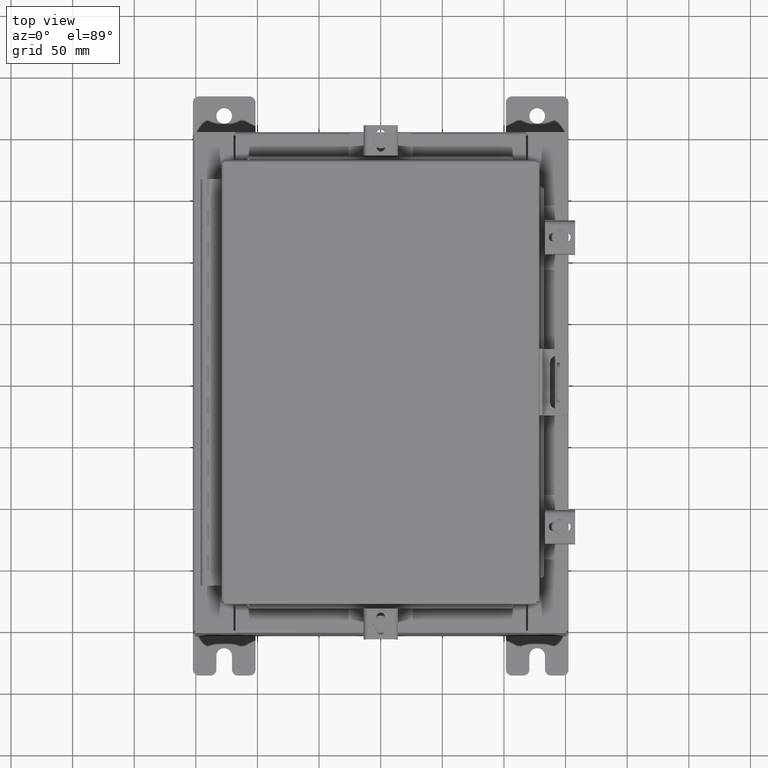
[diagram: clean part render]
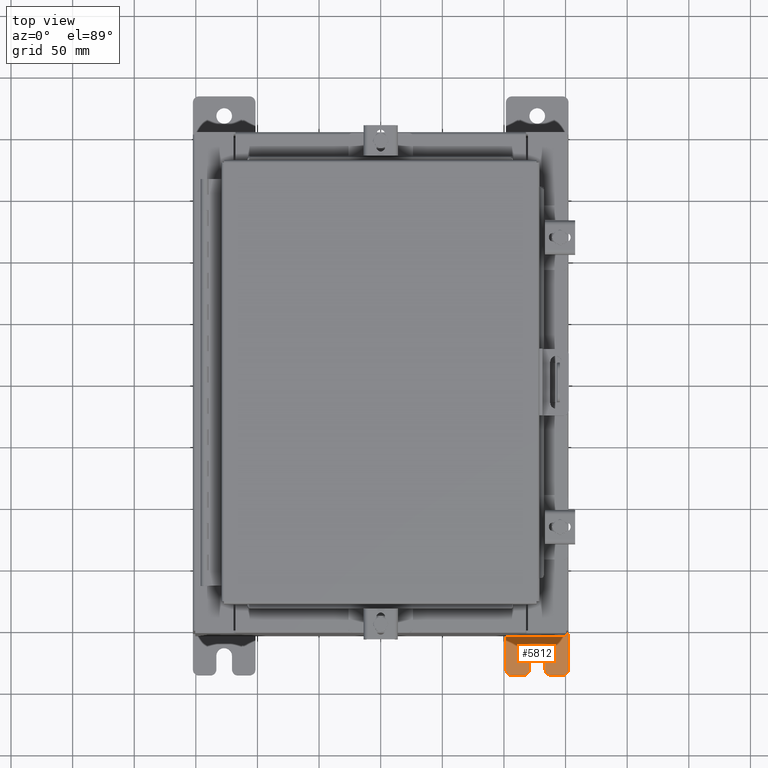
[diagram: same view with one face highlighted and labeled with its STEP entity id]
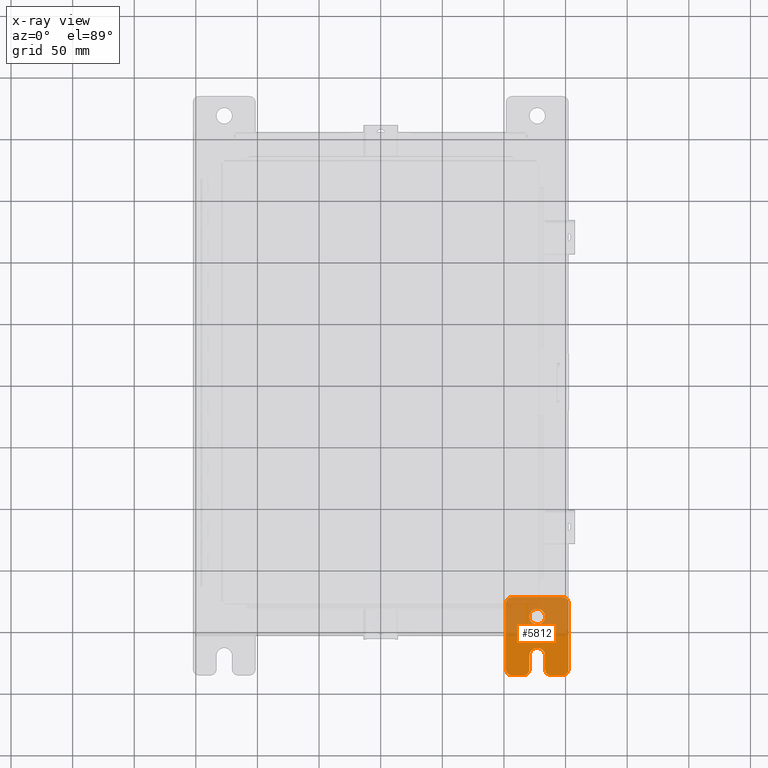
[diagram: x-ray of the same camera — body ghosted, the highlighted face saturated]
A machine part, top view. The second image highlights one B-rep face of the part: STEP entity #5812.
The next image is the same camera in x-ray: the body ghosted, the highlighted face saturated — about 50% of this face is hidden behind the body in this view.
In plain terms, the highlighted planar face has unit normal (0, 0, 1).
Its self-contained STEP definition (entity closure, byte-faithful):
#57 = CARTESIAN_POINT ( 'NONE',  ( 4.168508244714285900E-016, 0.6249999999999992200, 0.2499999999999999200 ) ) ;
#84 = AXIS2_PLACEMENT_3D ( 'NONE', #16123, #6111, #8037 ) ;
#274 = DIRECTION ( 'NONE',  ( 1.000000000000000000, 0.0000000000000000000, -0.0000000000000000000 ) ) ;
#299 = LINE ( 'NONE', #11820, #10312 ) ;
#776 = DIRECTION ( 'NONE',  ( -5.163192708025533800E-017, 0.0000000000000000000, -1.000000000000000000 ) ) ;
#1159 = CARTESIAN_POINT ( 'NONE',  ( 0.0000000000000000000, 1.059999999999996300, 0.8099999999999938400 ) ) ;
#1342 = CARTESIAN_POINT ( 'NONE',  ( 0.0000000000000000000, 1.249999999999994700, -0.8100000000000092700 ) ) ;
#1448 = CIRCLE ( 'NONE', #17226, 0.1900000000000011100 ) ;
#1869 = EDGE_CURVE ( 'NONE', #15789, #6916, #12120, .T. ) ;
#1918 = CARTESIAN_POINT ( 'NONE',  ( 3.910348609313009100E-016, 0.6249999999999992200, -0.2499999999999999200 ) ) ;
#2552 = VERTEX_POINT ( 'NONE', #21723 ) ;
#2598 = DIRECTION ( 'NONE',  ( 0.0000000000000000000, -1.000000000000000000, 1.639108796198558100E-015 ) ) ;
#2603 = AXIS2_PLACEMENT_3D ( 'NONE', #25195, #20163, #10479 ) ;
#2619 = AXIS2_PLACEMENT_3D ( 'NONE', #10704, #20080, #776 ) ;
#2976 = EDGE_CURVE ( 'NONE', #13401, #19268, #16209, .T. ) ;
#3042 = VERTEX_POINT ( 'NONE', #57 ) ;
#3168 = ORIENTED_EDGE ( 'NONE', *, *, #21048, .T. ) ;
#3459 = FACE_OUTER_BOUND ( 'NONE', #11272, .T. ) ;
#3623 = DIRECTION ( 'NONE',  ( 1.000000000000000000, 0.0000000000000000000, -0.0000000000000000000 ) ) ;
#3837 = CARTESIAN_POINT ( 'NONE',  ( 0.0000000000000000000, -1.060000000000001600, 0.8099999999999978300 ) ) ;
#3942 = DIRECTION ( 'NONE',  ( 6.556435184794182400E-016, 1.000000000000000000, 0.0000000000000000000 ) ) ;
#4272 = VECTOR ( 'NONE', #10712, 39.37007874015748100 ) ;
#4657 = VERTEX_POINT ( 'NONE', #1342 ) ;
#5365 = FACE_BOUND ( 'NONE', #24623, .T. ) ;
#5399 = CARTESIAN_POINT ( 'NONE',  ( 0.0000000000000000000, -1.250000000000002200, 0.9999999999999992200 ) ) ;
#5486 = DIRECTION ( 'NONE',  ( 0.0000000000000000000, 0.0000000000000000000, -1.000000000000000000 ) ) ;
#5812 = ADVANCED_FACE ( 'NONE', ( #5365, #3459 ), #21213, .T. ) ;
#5889 = DIRECTION ( 'NONE',  ( 1.000000000000000000, 0.0000000000000000000, -0.0000000000000000000 ) ) ;
#6111 = DIRECTION ( 'NONE',  ( 1.000000000000000000, 0.0000000000000000000, -0.0000000000000000000 ) ) ;
#6375 = ORIENTED_EDGE ( 'NONE', *, *, #7215, .T. ) ;
#6870 = DIRECTION ( 'NONE',  ( -1.000000000000000000, 6.523827964459549700E-016, 5.163192708025532000E-017 ) ) ;
#6916 = VERTEX_POINT ( 'NONE', #17328 ) ;
#6960 = CARTESIAN_POINT ( 'NONE',  ( 0.0000000000000000000, -1.060000000000004500, -1.000000000000006400 ) ) ;
#7048 = CARTESIAN_POINT ( 'NONE',  ( 0.0000000000000000000, 1.249999999999994200, -1.000000000000010400 ) ) ;
#7215 = EDGE_CURVE ( 'NONE', #18654, #8657, #21761, .T. ) ;
#7327 = EDGE_CURVE ( 'NONE', #12699, #3042, #12339, .T. ) ;
#7577 = AXIS2_PLACEMENT_3D ( 'NONE', #19650, #25852, #11703 ) ;
#8011 = LINE ( 'NONE', #24023, #18032 ) ;
#8037 = DIRECTION ( 'NONE',  ( -0.0000000000000000000, 0.0000000000000000000, -1.000000000000000000 ) ) ;
#8318 = CARTESIAN_POINT ( 'NONE',  ( 0.0000000000000000000, -1.060000000000001200, 0.9999999999999988900 ) ) ;
#8495 = CARTESIAN_POINT ( 'NONE',  ( 4.780733988912460100E-016, -0.6249999999999993300, -0.2499999999999998600 ) ) ;
#8657 = VERTEX_POINT ( 'NONE', #22977 ) ;
#8965 = LINE ( 'NONE', #24851, #4272 ) ;
#8974 = LINE ( 'NONE', #7048, #11601 ) ;
#9112 = EDGE_CURVE ( 'NONE', #3042, #12699, #24021, .T. ) ;
#9136 = EDGE_CURVE ( 'NONE', #4657, #2552, #8974, .T. ) ;
#9206 = AXIS2_PLACEMENT_3D ( 'NONE', #3837, #274, #5486 ) ;
#9207 = LINE ( 'NONE', #5399, #24690 ) ;
#9450 = CARTESIAN_POINT ( 'NONE',  ( 0.0000000000000000000, -1.250000000000003100, 0.4400000000000020000 ) ) ;
#10291 = VERTEX_POINT ( 'NONE', #25189 ) ;
#10312 = VECTOR ( 'NONE', #13861, 39.37007874015748100 ) ;
#10398 = ORIENTED_EDGE ( 'NONE', *, *, #17550, .T. ) ;
#10439 = VERTEX_POINT ( 'NONE', #6960 ) ;
#10479 = DIRECTION ( 'NONE',  ( 0.0000000000000000000, 0.0000000000000000000, -1.000000000000000000 ) ) ;
#10526 = EDGE_CURVE ( 'NONE', #24070, #15789, #22027, .T. ) ;
#10704 = CARTESIAN_POINT ( 'NONE',  ( 4.039428427013647300E-016, 0.6249999999999992200, -9.783840404509077400E-018 ) ) ;
#10712 = DIRECTION ( 'NONE',  ( 0.0000000000000000000, -1.639108796198553600E-015, -1.000000000000000000 ) ) ;
#10828 = DIRECTION ( 'NONE',  ( -5.163192708025533800E-017, 0.0000000000000000000, -1.000000000000000000 ) ) ;
#11042 = ORIENTED_EDGE ( 'NONE', *, *, #1869, .T. ) ;
#11230 = DIRECTION ( 'NONE',  ( 1.000000000000000000, 0.0000000000000000000, -0.0000000000000000000 ) ) ;
#11272 = EDGE_LOOP ( 'NONE', ( #3168, #6375, #21779, #16052, #15931, #23515, #11042, #20449, #24420, #24467, #23923, #17957, #23963, #10398 ) ) ;
#11601 = VECTOR ( 'NONE', #21694, 39.37007874015748100 ) ;
#11684 = DIRECTION ( 'NONE',  ( 0.0000000000000000000, -1.639108796198553600E-015, -1.000000000000000000 ) ) ;
#11703 = DIRECTION ( 'NONE',  ( 0.0000000000000000000, 0.0000000000000000000, -1.000000000000000000 ) ) ;
#11820 = CARTESIAN_POINT ( 'NONE',  ( 0.0000000000000000000, -1.250000000000005600, -1.000000000000006200 ) ) ;
#12120 = LINE ( 'NONE', #12243, #17453 ) ;
#12243 = CARTESIAN_POINT ( 'NONE',  ( 4.780733988912460100E-016, -0.6249999999999993300, -0.2499999999999993900 ) ) ;
#12339 = CIRCLE ( 'NONE', #25216, 0.2499999999999999200 ) ;
#12699 = VERTEX_POINT ( 'NONE', #1918 ) ;
#12812 = AXIS2_PLACEMENT_3D ( 'NONE', #15623, #3623, #17649 ) ;
#12961 = CARTESIAN_POINT ( 'NONE',  ( 0.0000000000000000000, -1.250000000000004700, -0.4400000000000002200 ) ) ;
#13046 = EDGE_CURVE ( 'NONE', #24627, #20551, #9207, .T. ) ;
#13229 = AXIS2_PLACEMENT_3D ( 'NONE', #18876, #6870, #14197 ) ;
#13264 = DIRECTION ( 'NONE',  ( 1.000000000000000000, -0.0000000000000000000, -5.163192708025532000E-017 ) ) ;
#13369 = VECTOR ( 'NONE', #2598, 39.37007874015748100 ) ;
#13401 = VERTEX_POINT ( 'NONE', #9450 ) ;
#13793 = DIRECTION ( 'NONE',  ( -6.556435184794182400E-016, -1.000000000000000000, -1.639108796198545600E-016 ) ) ;
#13861 = DIRECTION ( 'NONE',  ( 0.0000000000000000000, 1.000000000000000000, -1.639108796198558100E-015 ) ) ;
#13997 = LINE ( 'NONE', #14583, #13369 ) ;
#14197 = DIRECTION ( 'NONE',  ( -6.523827964459551700E-016, -1.000000000000000000, 0.0000000000000000000 ) ) ;
#14583 = CARTESIAN_POINT ( 'NONE',  ( 0.0000000000000000000, 1.249999999999997600, 0.9999999999999951200 ) ) ;
#14981 = VERTEX_POINT ( 'NONE', #20461 ) ;
#15623 = CARTESIAN_POINT ( 'NONE',  ( 0.0000000000000000000, 1.059999999999993600, -0.8100000000000089400 ) ) ;
#15789 = VERTEX_POINT ( 'NONE', #8495 ) ;
#15931 = ORIENTED_EDGE ( 'NONE', *, *, #22042, .T. ) ;
#16052 = ORIENTED_EDGE ( 'NONE', *, *, #2976, .T. ) ;
#16123 = CARTESIAN_POINT ( 'NONE',  ( 0.0000000000000000000, 0.0000000000000000000, 0.0000000000000000000 ) ) ;
#16209 = CIRCLE ( 'NONE', #2603, 0.1900000000000011400 ) ;
#16547 = DIRECTION ( 'NONE',  ( 0.0000000000000000000, 0.0000000000000000000, -1.000000000000000000 ) ) ;
#16812 = CARTESIAN_POINT ( 'NONE',  ( 0.0000000000000000000, -1.250000000000005300, -0.8100000000000047200 ) ) ;
#17203 = CARTESIAN_POINT ( 'NONE',  ( 4.039428427013647300E-016, 0.6249999999999992200, -9.783840404509077400E-018 ) ) ;
#17226 = AXIS2_PLACEMENT_3D ( 'NONE', #1159, #11230, #25397 ) ;
#17328 = CARTESIAN_POINT ( 'NONE',  ( 1.928684683526964400E-016, -1.060000000000003400, -0.2499999999999994400 ) ) ;
#17453 = VECTOR ( 'NONE', #13793, 39.37007874015748100 ) ;
#17550 = EDGE_CURVE ( 'NONE', #2552, #10291, #1448, .T. ) ;
#17580 = EDGE_CURVE ( 'NONE', #6916, #24627, #20330, .T. ) ;
#17649 = DIRECTION ( 'NONE',  ( 0.0000000000000000000, 0.0000000000000000000, -1.000000000000000000 ) ) ;
#17892 = CARTESIAN_POINT ( 'NONE',  ( 0.0000000000000000000, -1.060000000000003400, -0.4400000000000005000 ) ) ;
#17957 = ORIENTED_EDGE ( 'NONE', *, *, #21373, .T. ) ;
#18032 = VECTOR ( 'NONE', #3942, 39.37007874015748100 ) ;
#18229 = EDGE_CURVE ( 'NONE', #20551, #10439, #23147, .T. ) ;
#18654 = VERTEX_POINT ( 'NONE', #8318 ) ;
#18876 = CARTESIAN_POINT ( 'NONE',  ( 4.780733988912460100E-016, -0.6249999999999993300, 5.858939755051854500E-017 ) ) ;
#19268 = VERTEX_POINT ( 'NONE', #21880 ) ;
#19650 = CARTESIAN_POINT ( 'NONE',  ( 0.0000000000000000000, -1.060000000000004100, -0.8100000000000050500 ) ) ;
#19662 = EDGE_CURVE ( 'NONE', #10439, #14981, #299, .T. ) ;
#20080 = DIRECTION ( 'NONE',  ( 1.000000000000000000, -0.0000000000000000000, -5.163192708025532000E-017 ) ) ;
#20163 = DIRECTION ( 'NONE',  ( 1.000000000000000000, 0.0000000000000000000, -0.0000000000000000000 ) ) ;
#20330 = CIRCLE ( 'NONE', #25421, 0.1900000000000011100 ) ;
#20449 = ORIENTED_EDGE ( 'NONE', *, *, #17580, .T. ) ;
#20461 = CARTESIAN_POINT ( 'NONE',  ( 0.0000000000000000000, 1.059999999999993400, -1.000000000000010000 ) ) ;
#20551 = VERTEX_POINT ( 'NONE', #16812 ) ;
#20833 = ORIENTED_EDGE ( 'NONE', *, *, #9112, .F. ) ;
#21048 = EDGE_CURVE ( 'NONE', #10291, #18654, #13997, .T. ) ;
#21213 = PLANE ( 'NONE',  #84 ) ;
#21373 = EDGE_CURVE ( 'NONE', #14981, #4657, #22547, .T. ) ;
#21694 = DIRECTION ( 'NONE',  ( 0.0000000000000000000, 1.639108796198553600E-015, 1.000000000000000000 ) ) ;
#21723 = CARTESIAN_POINT ( 'NONE',  ( 0.0000000000000000000, 1.249999999999997300, 0.8099999999999935000 ) ) ;
#21761 = CIRCLE ( 'NONE', #9206, 0.1900000000000011100 ) ;
#21769 = EDGE_CURVE ( 'NONE', #8657, #13401, #8965, .T. ) ;
#21779 = ORIENTED_EDGE ( 'NONE', *, *, #21769, .T. ) ;
#21880 = CARTESIAN_POINT ( 'NONE',  ( 1.928684683526972300E-016, -1.060000000000002100, 0.2500000000000005000 ) ) ;
#22027 = CIRCLE ( 'NONE', #13229, 0.2499999999999999200 ) ;
#22042 = EDGE_CURVE ( 'NONE', #19268, #24070, #8011, .T. ) ;
#22547 = CIRCLE ( 'NONE', #12812, 0.1900000000000011100 ) ;
#22977 = CARTESIAN_POINT ( 'NONE',  ( 0.0000000000000000000, -1.250000000000002400, 0.8099999999999980500 ) ) ;
#23147 = CIRCLE ( 'NONE', #7577, 0.1900000000000011100 ) ;
#23330 = CARTESIAN_POINT ( 'NONE',  ( 0.0000000000000000000, -0.6249999999999992200, 0.2500000000000005000 ) ) ;
#23515 = ORIENTED_EDGE ( 'NONE', *, *, #10526, .T. ) ;
#23923 = ORIENTED_EDGE ( 'NONE', *, *, #19662, .T. ) ;
#23963 = ORIENTED_EDGE ( 'NONE', *, *, #9136, .T. ) ;
#24021 = CIRCLE ( 'NONE', #2619, 0.2499999999999999200 ) ;
#24023 = CARTESIAN_POINT ( 'NONE',  ( 6.829619984160658000E-017, -1.250000000000003800, 0.2500000000000005000 ) ) ;
#24070 = VERTEX_POINT ( 'NONE', #23330 ) ;
#24420 = ORIENTED_EDGE ( 'NONE', *, *, #13046, .T. ) ;
#24467 = ORIENTED_EDGE ( 'NONE', *, *, #18229, .T. ) ;
#24623 = EDGE_LOOP ( 'NONE', ( #25351, #20833 ) ) ;
#24627 = VERTEX_POINT ( 'NONE', #12961 ) ;
#24690 = VECTOR ( 'NONE', #11684, 39.37007874015748100 ) ;
#24851 = CARTESIAN_POINT ( 'NONE',  ( 0.0000000000000000000, -1.250000000000002200, 0.9999999999999992200 ) ) ;
#25189 = CARTESIAN_POINT ( 'NONE',  ( 0.0000000000000000000, 1.059999999999996500, 0.9999999999999953400 ) ) ;
#25195 = CARTESIAN_POINT ( 'NONE',  ( 0.0000000000000000000, -1.060000000000002100, 0.4400000000000016700 ) ) ;
#25216 = AXIS2_PLACEMENT_3D ( 'NONE', #17203, #13264, #10828 ) ;
#25351 = ORIENTED_EDGE ( 'NONE', *, *, #7327, .F. ) ;
#25397 = DIRECTION ( 'NONE',  ( 0.0000000000000000000, 0.0000000000000000000, -1.000000000000000000 ) ) ;
#25421 = AXIS2_PLACEMENT_3D ( 'NONE', #17892, #5889, #16547 ) ;
#25852 = DIRECTION ( 'NONE',  ( 1.000000000000000000, 0.0000000000000000000, -0.0000000000000000000 ) ) ;